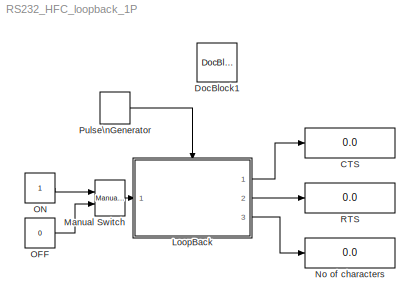
MODEL RS232_HFC_loopback_1P
KIND model
CONFIG PreLoadFcn = clear all;\nclose all;\nclc;\n\nTs = 1;          % clk (period)\n\n\n\n
CONFIG StartFcn = clc;\nclose all;\n\n%\n%   RS232 port initialization\n%\nPORTNAME = 'COM34';\nfprintf('\\nOpening RS232 port %s ...... ', PORTNAME);\ns1 = serial(PORTNAME,'BaudRate',9600,'Parity','none','DataBits',8);\nset(s1, 'FlowControl', 'none');\nset(s1, 'InputBufferSize', 64);\nset(s1, 'OutputBufferSize', 1);\nfopen(s1);\ns1.RecordDetail = 'verbose';\ns1.RecordName = 'lb.txt';\nrecord(s1,'on')\nfprintf('\\n...<+173ch>
CONFIG StopFcn = %\n%   RS232 ports release\n%\ndisp(' ');\ndisp('Deactivating RS232 port ......');\n\nfclose(s1)\ndelete(s1)\nclear s1\n\nfprintf('RS232 port %s deactivated\\n', PORTNAME);
BLOCK [Display] CTS
  Decimation = 1
  Lockdown = off
  Ports = [1]
  SID = 56
BLOCK [Reference] DocBlock1  REF=simulink/Model-Wide\nUtilities/DocBlock
  DocumentType = Text
  Ports = []
  SID = 15
  SourceBlock = simulink/Model-Wide\nUtilities/DocBlock
  SourceType = DocBlock
  UserData = DataTag0
  UserDataPersistent = on
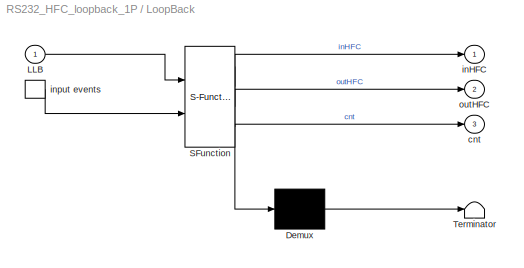
BLOCK [SubSystem] LoopBack
  ErrorFcn = Stateflow.Translate.translate
  FunctionWithSeparateData = off
  MaskHideContents = off
  MinAlgLoopOccurrences = off
  Opaque = off
  PermitHierarchicalResolution = ExplicitOnly
  Ports = [1, 3, 0, 1]
  PropExecContextOutsideSubsystem = off
  RTWSystemCode = Auto
  RequestExecContextInheritance = off
  SFBlockType = Chart
  SID = 45
  TreatAsAtomicUnit = on
BLOCK [Demux] LoopBack/ Demux 
  Outputs = 1
  Ports = [1, 1]
  SID = 45::54
BLOCK [S-Function] LoopBack/ SFunction 
  EnableBusSupport = on
  FunctionName = sf_sfun
  PortCounts = [2 4]
  Ports = [2, 4]
  SID = 45::53
  Tag = Stateflow S-Function RS232_HFC_loopback_1P 3
BLOCK [Terminator] LoopBack/ Terminator 
  SID = 45::55
BLOCK [TriggerPort] LoopBack/ input events 
  Ports = [0, 1]
  SID = 45::29
  ShowOutputPort = on
  StatesWhenEnabling = held
  TriggerType = either
BLOCK [Inport] LoopBack/LLB
  IconDisplay = Port number
  SID = 45::52
BLOCK [Outport] LoopBack/cnt
  IconDisplay = Port number
  Port = 3
  SID = 45::48
BLOCK [Outport] LoopBack/inHFC
  IconDisplay = Port number
  SID = 45::51
BLOCK [Outport] LoopBack/outHFC
  IconDisplay = Port number
  Port = 2
  SID = 45::49
BLOCK [Reference] Manual Switch  REF=simulink/Signal\nRouting/Manual Switch
  Ports = [2, 1]
  SID = 62
  SourceBlock = simulink/Signal\nRouting/Manual Switch
  SourceType = Manual Switch
  action = 0
  sw = 1
  varsize = off
BLOCK [Display] No of characters
  Decimation = 1
  Lockdown = off
  Ports = [1]
  SID = 58
BLOCK [Constant] OFF
  SID = 60
  Value = 0
BLOCK [Constant] ON
  SID = 59
BLOCK [DiscretePulseGenerator] Pulse\nGenerator
  Period = Ts
  Ports = [0, 1]
  PulseType = Time based
  PulseWidth = 50
  SID = 4
BLOCK [Display] RTS
  Decimation = 1
  Lockdown = off
  Ports = [1]
  SID = 57
LINE LoopBack/ Demux :1 -> LoopBack/ Terminator :1
LINE LoopBack/ SFunction :1 -> LoopBack/ Demux :1
LINE LoopBack/ SFunction :2 -> LoopBack/inHFC:1
LINE LoopBack/ SFunction :3 -> LoopBack/outHFC:1
LINE LoopBack/ SFunction :4 -> LoopBack/cnt:1
LINE LoopBack/ input events :1 -> LoopBack/ SFunction :2
LINE LoopBack/LLB:1 -> LoopBack/ SFunction :1
LINE LoopBack:1 -> CTS:1
LINE LoopBack:2 -> RTS:1
LINE LoopBack:3 -> No of characters:1
LINE Manual Switch:1 -> LoopBack:1
LINE OFF:1 -> Manual Switch:2
LINE ON:1 -> Manual Switch:1
LINE Pulse\nGenerator:1 -> LoopBack:trigger
CHART LoopBack states=6 transitions=8
  STATE_LABEL "RxState\\nen: ml('DIn_1');\\n      Val = ml.d2r_s1;\\n      cnt = cnt + 1;"
  STATE_LABEL 'IniState'
  STATE_LABEL "HFCcon\\nml('CTS_1');\\nLBstatus = ml.cts_s1;\\ninHFC = LBstatus;\\nLBstatus = LBstatus & LLB;\\nml.rts_s1 = LBstatus;\\noutHFC = LBstatus;\\nml('RTS_1');"
  STATE_LABEL 'HFC'
  STATE_LABEL "TxState\\nen: ml.d2o_s1 = Val;\\n      ml('DOut_1');"
  STATE_LABEL 'TxR'
